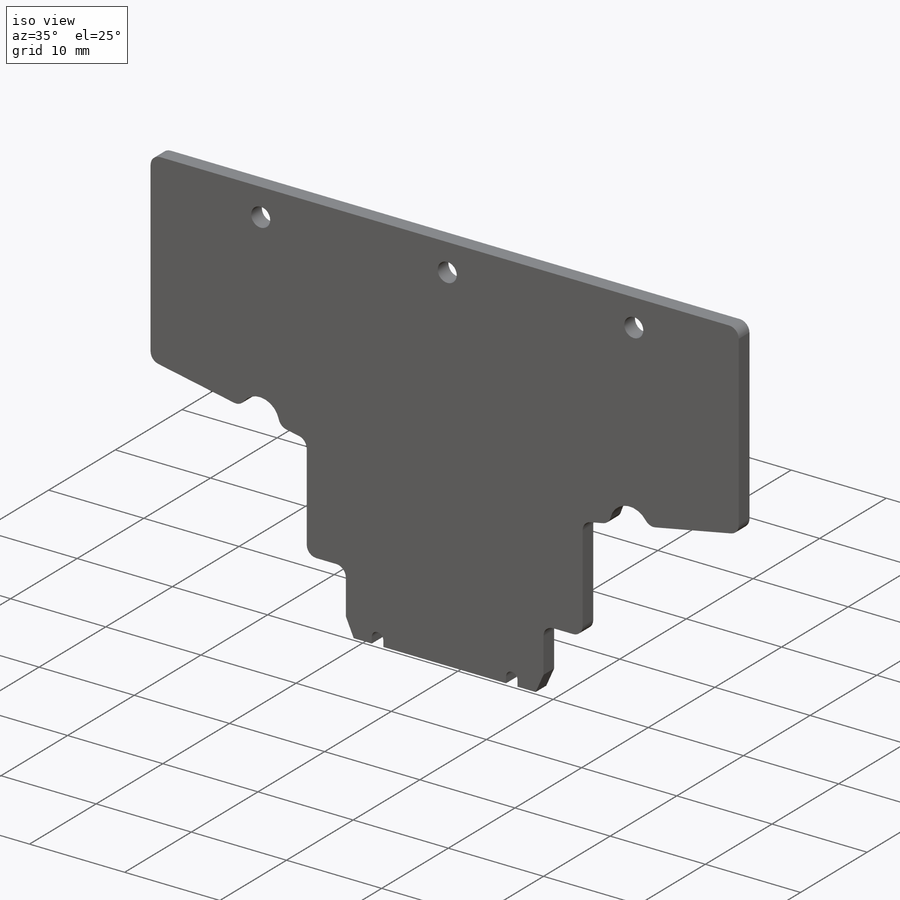
[diagram: iso view]
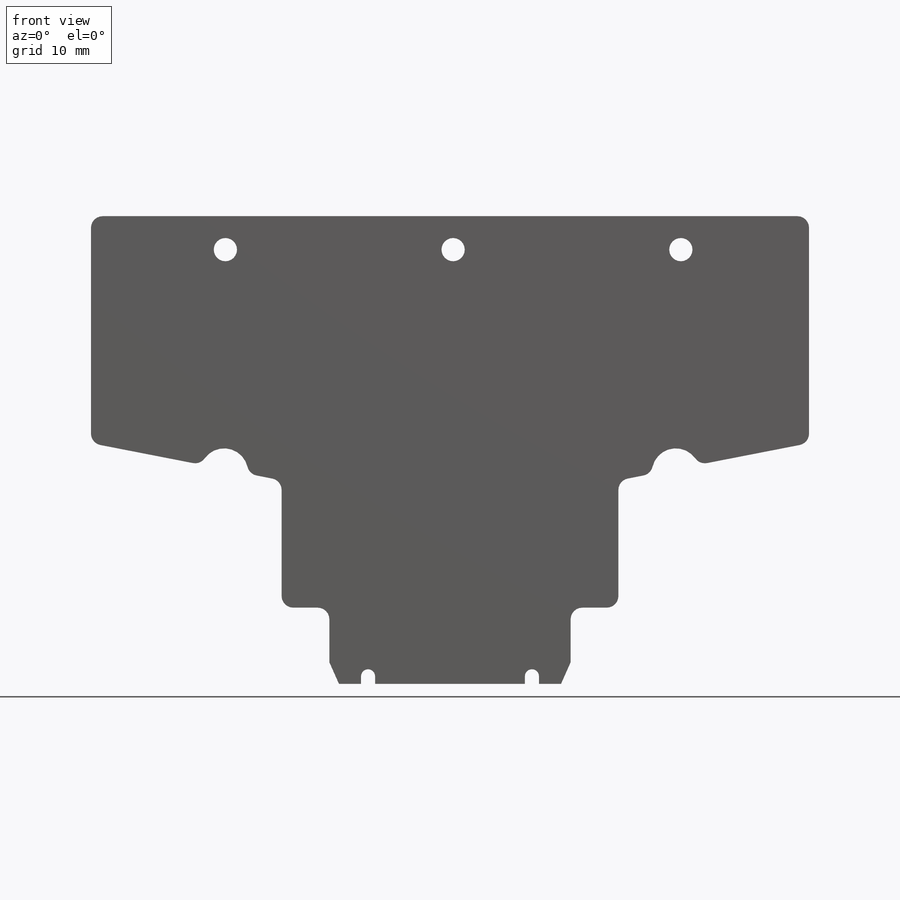
[diagram: front view]
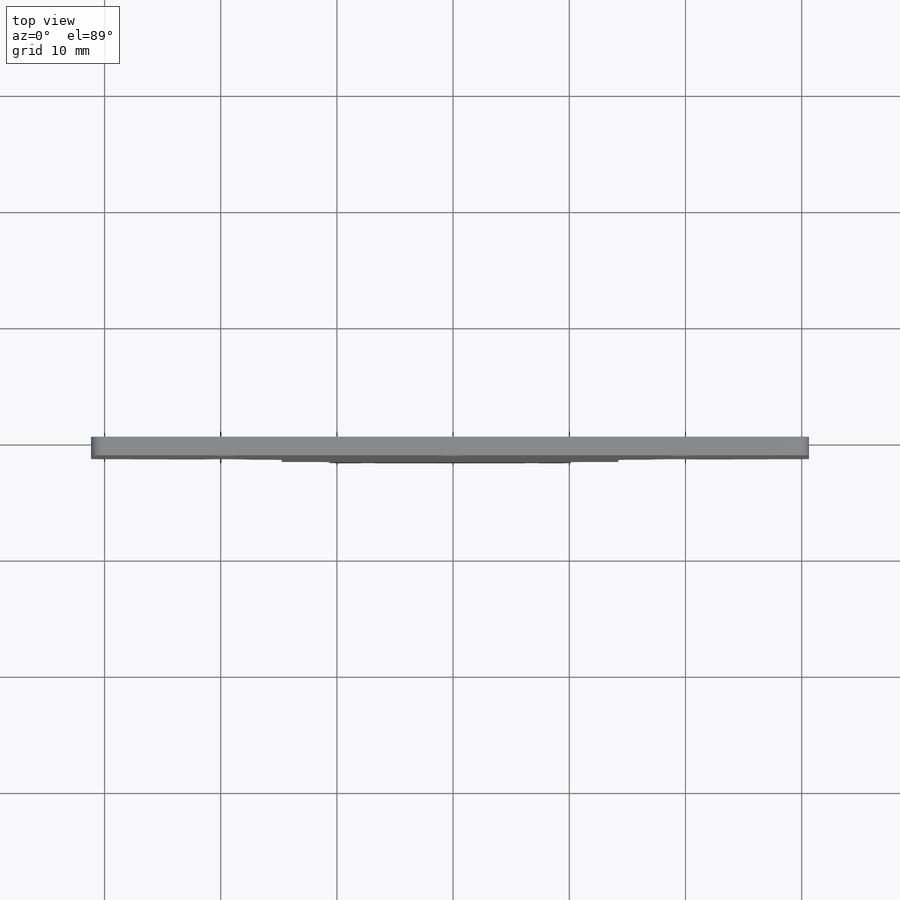
[diagram: top view]
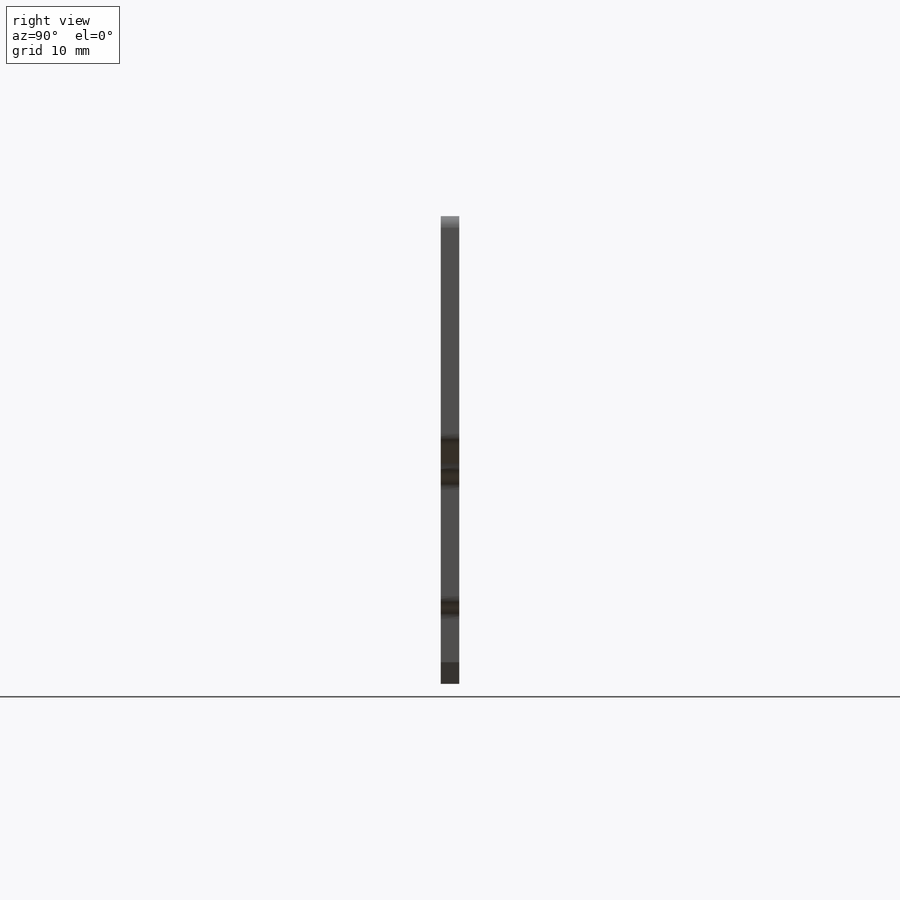
[diagram: right view]
SOLIDWORKS PART (.sldprt)
format: sldprt  version: not decoded by parser v0  size: 434,176 bytes
history: native  units: mm
features: sketch x3, cut_extrude x2, material x1, extrude x1, fillet x1 (+11 scaffold rows collapsed)
feature tree (19):
  scaffold x11  (default folders/planes/origin — collapsed)
  material  "Material <not specified>"
  sketch  "Sketch1"  dims[D1=80.0mm D2=60.0mm]
  extrude  "Boss-Extrude1"  Depth=1.6mm
  sketch  "Sketch2"
  cut_extrude  "Cut-Extrude1"  Depth=1.6mm
  fillet  "Fillet1"  Radius=1mm
  sketch  "Sketch3"  dims[c1.D1=2.0mm c1.D2=19.6mm c1.D3=20.0mm c1.D4=20.0mm c2.D3=19.6mm c2.D4=40.0mm c2.D5=2.88mm]
  cut_extrude  "Cut-Extrude2"  Depth=10mm
decode coverage: 6 of 7 modeling features carry decoded parameters
note: suppression state not decoded; provenance and decode notes live in map.json
